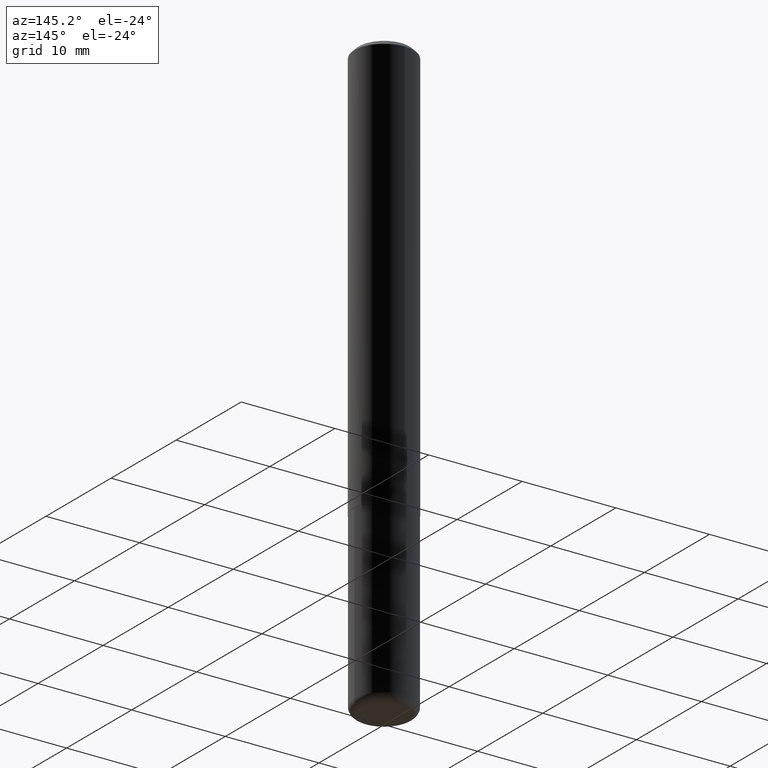
[diagram: clean part render]
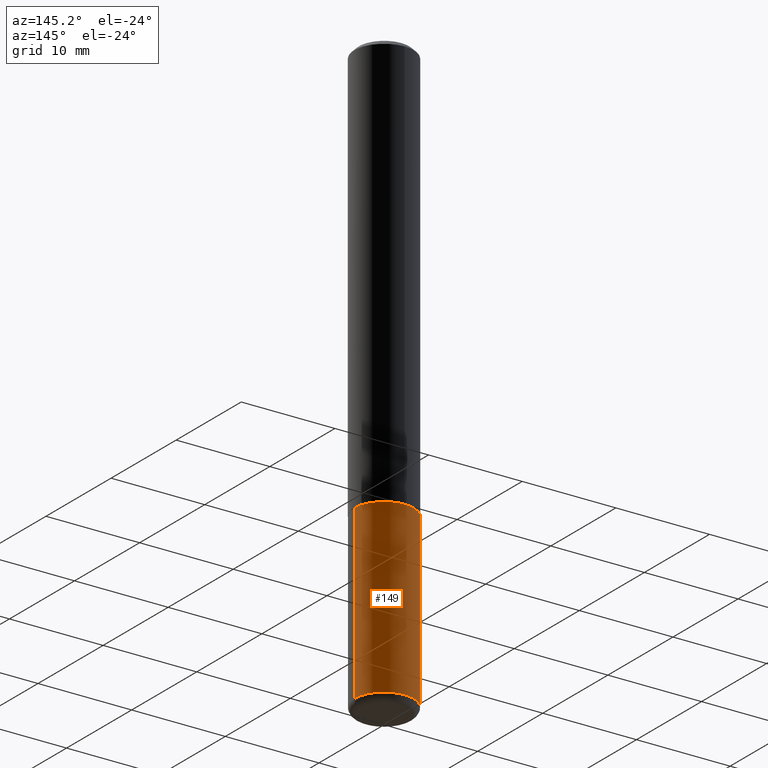
[diagram: same view with one face highlighted and labeled with its STEP entity id]
A machine part, auxiliary view. The second image highlights one B-rep face of the part: STEP entity #149.
In plain terms, the highlighted cylindrical surface (edge-blend (fillet) strip) has radius 3.175 mm, axis along (-0, 0, 1).
Its self-contained STEP definition (entity closure, byte-faithful):
#1 = DIRECTION ( 'NONE',  ( 1.000000000000000000, -6.982962677686262766E-15, 0.000000000000000000 ) ) ;
#4 = CARTESIAN_POINT ( 'NONE',  ( 0.1250000000000000000, -6.982962677686288010E-15, -1.750000000000000222 ) ) ;
#26 = LINE ( 'NONE', #344, #145 ) ;
#33 = CARTESIAN_POINT ( 'NONE',  ( 4.279570410823989044E-29, -6.110092342975505460E-15, -1.750000000000000222 ) ) ;
#40 = LINE ( 'NONE', #131, #335 ) ;
#43 = ORIENTED_EDGE ( 'NONE', *, *, #408, .T. ) ;
#55 = ORIENTED_EDGE ( 'NONE', *, *, #65, .F. ) ;
#65 = EDGE_CURVE ( 'NONE', #73, #409, #26, .T. ) ;
#73 = VERTEX_POINT ( 'NONE', #255 ) ;
#125 = CARTESIAN_POINT ( 'NONE',  ( 6.040307951277287977E-29, -8.623958906942569995E-15, -2.470000000000000195 ) ) ;
#131 = CARTESIAN_POINT ( 'NONE',  ( -0.1250000000000000000, 8.881784197001252323E-16, -6.148668862818632227E-30 ) ) ;
#133 = EDGE_CURVE ( 'NONE', #377, #182, #40, .T. ) ;
#135 = FACE_OUTER_BOUND ( 'NONE', #272, .T. ) ;
#145 = VECTOR ( 'NONE', #382, 39.37007874015748143 ) ;
#149 = ADVANCED_FACE ( 'NONE', ( #135 ), #232, .T. ) ;
#160 = AXIS2_PLACEMENT_3D ( 'NONE', #125, #320, #290 ) ;
#171 = DIRECTION ( 'NONE',  ( -2.445468806185136877E-29, 3.491481338843145188E-15, 1.000000000000000000 ) ) ;
#182 = VERTEX_POINT ( 'NONE', #396 ) ;
#232 = CYLINDRICAL_SURFACE ( 'NONE', #284, 0.1250000000000000000 ) ;
#255 = CARTESIAN_POINT ( 'NONE',  ( 0.1250000000000001110, -9.496829241653354912E-15, -2.470000000000000195 ) ) ;
#272 = EDGE_LOOP ( 'NONE', ( #43, #367, #380, #55 ) ) ;
#280 = CARTESIAN_POINT ( 'NONE',  ( -0.1250000000000001110, -7.735780487242444763E-15, -2.470000000000000195 ) ) ;
#284 = AXIS2_PLACEMENT_3D ( 'NONE', #368, #300, #365 ) ;
#290 = DIRECTION ( 'NONE',  ( 1.000000000000000000, -6.982962677686270655E-15, 0.000000000000000000 ) ) ;
#300 = DIRECTION ( 'NONE',  ( -2.445468806185136597E-29, 3.491481338843145583E-15, 1.000000000000000000 ) ) ;
#311 = CIRCLE ( 'NONE', #160, 0.1250000000000000000 ) ;
#320 = DIRECTION ( 'NONE',  ( -2.445468806185136597E-29, 3.491481338843145583E-15, 1.000000000000000000 ) ) ;
#335 = VECTOR ( 'NONE', #171, 39.37007874015748143 ) ;
#344 = CARTESIAN_POINT ( 'NONE',  ( 0.1250000000000000000, -8.728703347107833388E-16, 6.095220969744919741E-30 ) ) ;
#355 = DIRECTION ( 'NONE',  ( -2.445468806185136597E-29, 3.491481338843145583E-15, 1.000000000000000000 ) ) ;
#365 = DIRECTION ( 'NONE',  ( 1.000000000000000000, -6.982962677686266711E-15, 4.876176775795935793E-29 ) ) ;
#367 = ORIENTED_EDGE ( 'NONE', *, *, #133, .T. ) ;
#368 = CARTESIAN_POINT ( 'NONE',  ( 0.000000000000000000, 0.000000000000000000, 0.000000000000000000 ) ) ;
#373 = AXIS2_PLACEMENT_3D ( 'NONE', #33, #355, #1 ) ;
#377 = VERTEX_POINT ( 'NONE', #280 ) ;
#380 = ORIENTED_EDGE ( 'NONE', *, *, #402, .F. ) ;
#382 = DIRECTION ( 'NONE',  ( -2.445468806185136877E-29, 3.491481338843145188E-15, 1.000000000000000000 ) ) ;
#396 = CARTESIAN_POINT ( 'NONE',  ( -0.1250000000000000000, -6.478847205258913284E-15, -1.750000000000000222 ) ) ;
#402 = EDGE_CURVE ( 'NONE', #409, #182, #405, .T. ) ;
#405 = CIRCLE ( 'NONE', #373, 0.1250000000000000000 ) ;
#408 = EDGE_CURVE ( 'NONE', #73, #377, #311, .T. ) ;
#409 = VERTEX_POINT ( 'NONE', #4 ) ;